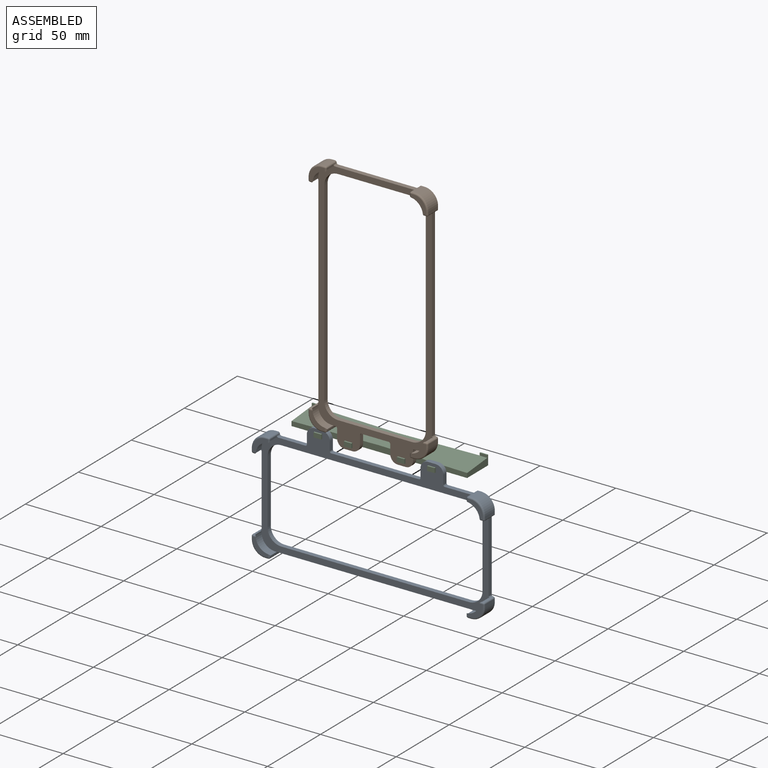
[diagram: assembled view]
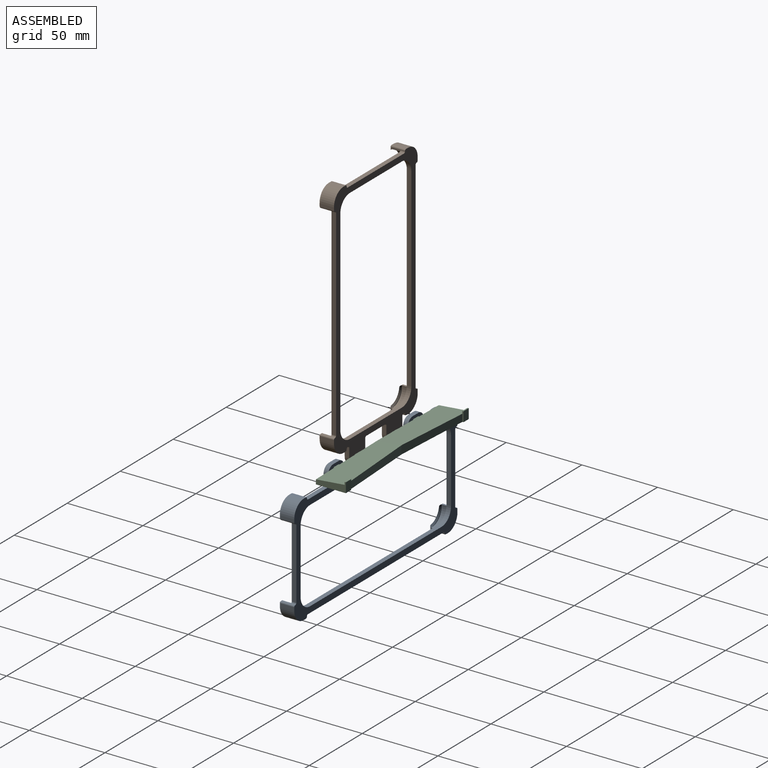
[diagram: assembled view, second angle]
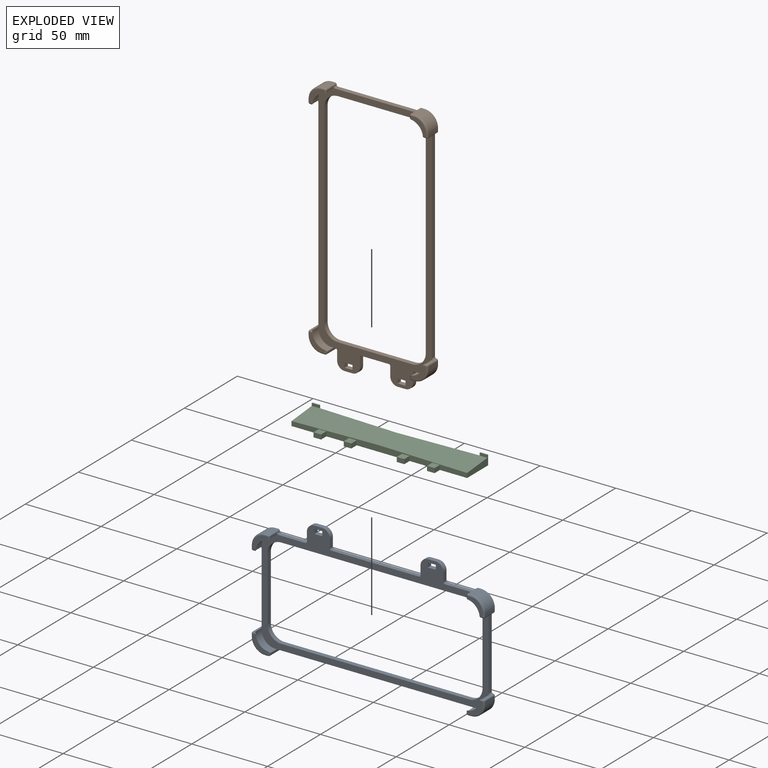
[diagram: exploded view]
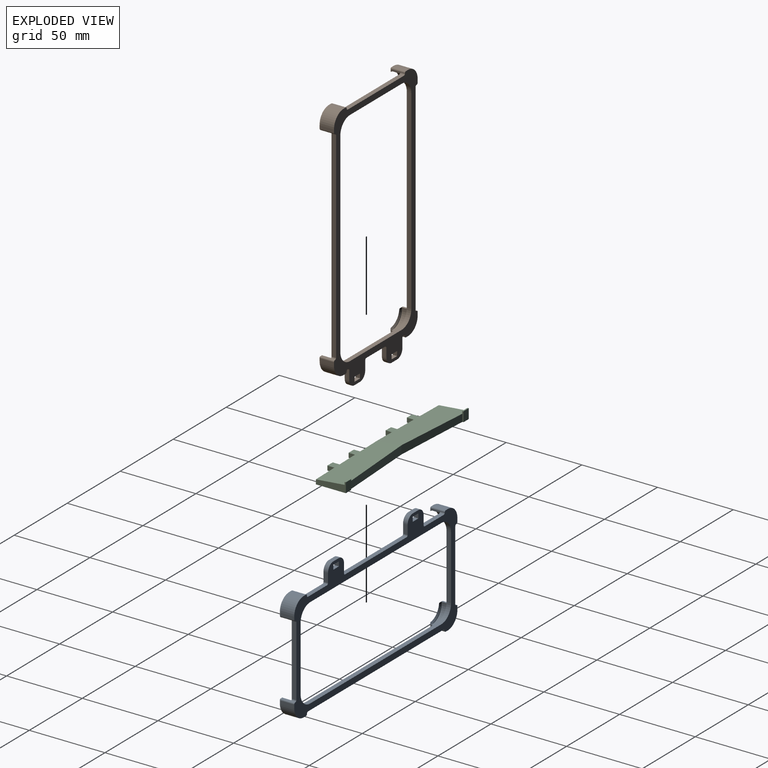
[diagram: exploded view, second angle]
ASSEMBLY  parts=3 mates=2
PART A: 126 faces, bbox 10x155.5x83.2 mm
  f0: plane 152x81.5mm, normal (1,0,0), area 1996.3mm2, adj f1,f2,f3,f4,f5,f6,f7,f8
  f1: plane 3x3mm, normal (0,-1,0), area 9mm2, adj f0,f2,f37,f41
  f2: plane 5.2x3mm, normal (0,0,1), area 15.6mm2, adj f0,f1,f3,f41
  f3: plane 3x3mm, normal (0,1,0), area 9mm2, adj f0,f2,f37,f41
  f4: plane 5.2x3mm, normal (0,0,1), area 15.6mm2, adj f0,f5,f38,f41
  f5: plane 3x3mm, normal (0,1,0), area 9mm2, adj f0,f4,f6,f41
  f6: plane 5.2x3mm, normal (0,0,-1), area 15.6mm2, adj f0,f5,f38,f41
  f7: plane 42.5x3mm, normal (0,1,0), area 127.5mm2, adj f0,f41,f58,f59
  f8: plane 124x3mm, normal (0,0,-1), area 372mm2, adj f0,f41,f59,f60
  f9: plane 42.5x3mm, normal (0,-1,0), area 127.5mm2, adj f0,f41,f60,f61
  f10: plane 9x2mm, normal (0,1,0), area 18mm2, adj f41,f62,f93,f99
  f11: plane 9x2mm, normal (0,0,1), area 18mm2, adj f41,f62,f90,f102
  f12: plane 6x1mm, normal (0,-1,0), area 6mm2, adj f0,f42,f89,f102
  f13: plane 128x3mm, normal (0,0,1), area 384mm2, adj f0,f41,f101,f104
  f14: plane 6x1mm, normal (0,1,0), area 6mm2, adj f0,f50,f86,f105
  f15: plane 9x2mm, normal (0,0,1), area 18mm2, adj f41,f63,f88,f105
  f16: plane 9x2mm, normal (0,-1,0), area 18mm2, adj f41,f63,f85,f108
  f17: plane 6x1mm, normal (0,0,-1), area 6mm2, adj f0,f51,f84,f108
  f18: plane 46.5x3mm, normal (0,-1,0), area 139.5mm2, adj f0,f41,f107,f110
  f19: plane 6x1mm, normal (0,0,1), area 6mm2, adj f0,f46,f82,f111
  f20: plane 9x2mm, normal (0,-1,0), area 18mm2, adj f41,f64,f83,f111
  f21: plane 9x2mm, normal (0,0,-1), area 18mm2, adj f41,f64,f80,f114
  f22: plane 6x1mm, normal (0,1,0), area 6mm2, adj f0,f47,f79,f114
  f23: plane 17.9x3mm, normal (0,0,-1), area 53.7mm2, adj f0,f41,f113,f122
  f24: plane 6x3mm, normal (0,-1,0), area 18mm2, adj f0,f41,f94,f122
  f25: plane 5.1x3mm, normal (0,0,-1), area 15.3mm2, adj f0,f41,f94,f95
  f26: plane 6x3mm, normal (0,1,0), area 18mm2, adj f0,f41,f95,f123
  f27: plane 58x3mm, normal (0,0,-1), area 174mm2, adj f0,f41,f123,f124
  f28: plane 6x3mm, normal (0,-1,0), area 18mm2, adj f0,f41,f96,f124
  f29: plane 5.1x3mm, normal (0,0,-1), area 15.3mm2, adj f0,f41,f96,f97
  f30: plane 6x3mm, normal (0,1,0), area 18mm2, adj f0,f41,f97,f125
  f31: plane 17.9x3mm, normal (0,0,-1), area 53.7mm2, adj f0,f41,f116,f125
  f32: plane 6x1mm, normal (0,-1,0), area 6mm2, adj f0,f54,f76,f117
  f33: plane 9x2mm, normal (0,0,-1), area 18mm2, adj f41,f65,f78,f117
  f34: plane 9x2mm, normal (0,1,0), area 18mm2, adj f41,f65,f75,f120
  f35: plane 6x1mm, normal (0,0,1), area 6mm2, adj f0,f55,f74,f120
  f36: plane 46.5x3mm, normal (0,1,0), area 139.5mm2, adj f0,f41,f98,f119
  f37: plane 5.2x3mm, normal (0,0,-1), area 15.6mm2, adj f0,f1,f3,f41
  f38: plane 3x3mm, normal (0,-1,0), area 9mm2, adj f0,f4,f6,f41
  f39: plane 6x1mm, normal (0,0,-1), area 6mm2, adj f0,f43,f92,f99
  f40: plane 124x3mm, normal (0,0,1), area 372mm2, adj f0,f41,f58,f61
  f41: plane 154x82.5mm, normal (-1,0,0), area 2170.6mm2, adj f1,f2,f3,f4,f5,f6,f7,f8
  f42: plane 6x1mm, normal (0,0,-1), area 6mm2, adj f0,f12,f45,f68
  f43: plane 6x1mm, normal (0,-1,0), area 6mm2, adj f0,f39,f45,f68
  f44: plane 10x10mm, normal (1,0,0), area 39.6mm2, adj f71,f89,f90,f91,f92,f93
  f45: plane 10x10mm, normal (-1,0,0), area 4.1mm2, adj f42,f43,f68,f71
  f46: plane 6x1mm, normal (0,1,0), area 6mm2, adj f0,f19,f49,f66
  f47: plane 6x1mm, normal (0,0,1), area 6mm2, adj f0,f22,f49,f66
  f48: plane 10x10mm, normal (1,0,0), area 39.6mm2, adj f73,f79,f80,f81,f82,f83
  f49: plane 10x10mm, normal (-1,0,0), area 4.1mm2, adj f46,f47,f66,f73
  f50: plane 6x1mm, normal (0,0,-1), area 6mm2, adj f0,f14,f52,f69
  f51: plane 6x1mm, normal (0,1,0), area 6mm2, adj f0,f17,f52,f69
  f52: plane 10x10mm, normal (-1,0,0), area 4.1mm2, adj f50,f51,f69,f72
  f53: plane 10x10mm, normal (1,0,0), area 39.6mm2, adj f72,f84,f85,f86,f87,f88
  f54: plane 6x1mm, normal (0,0,1), area 6mm2, adj f0,f32,f56,f67
  f55: plane 6x1mm, normal (0,-1,0), area 6mm2, adj f0,f35,f56,f67
  f56: plane 10x10mm, normal (-1,0,0), area 4.1mm2, adj f54,f55,f67,f70
  f57: plane 10x10mm, normal (1,0,0), area 39.6mm2, adj f70,f74,f75,f76,f77,f78
  f58: cylinder r=9mm len=9mm, axis (1,0,0), area 42.4mm2, adj f0,f7,f40,f41
  f59: cylinder r=9mm len=9mm, axis (1,0,0), area 42.4mm2, adj f0,f7,f8,f41
  f60: cylinder r=9mm len=9mm, axis (1,0,0), area 42.4mm2, adj f0,f8,f9,f41
  f61: cylinder r=9mm len=9mm, axis (1,0,0), area 42.4mm2, adj f0,f9,f40,f41
  f62: cylinder r=9mm len=9mm, axis (1,0,0), area 127.2mm2, adj f10,f11,f41,f91
  f63: cylinder r=9mm len=9mm, axis (1,0,0), area 127.2mm2, adj f15,f16,f41,f87
  f64: cylinder r=9mm len=9mm, axis (1,0,0), area 127.2mm2, adj f20,f21,f41,f81
  f65: cylinder r=9mm len=9mm, axis (1,0,0), area 127.2mm2, adj f33,f34,f41,f77
  f66: cylinder r=9mm len=9mm, axis (-1,0,0), area 84.8mm2, adj f0,f46,f47,f49
  f67: cylinder r=9mm len=9mm, axis (-1,0,0), area 84.8mm2, adj f0,f54,f55,f56
  f68: cylinder r=9mm len=9mm, axis (-1,0,0), area 84.8mm2, adj f0,f42,f43,f45
  f69: cylinder r=9mm len=9mm, axis (-1,0,0), area 84.8mm2, adj f0,f50,f51,f52
  f70: cone r=10mm half-angle=45deg, axis (-1,0,0), area 20.5mm2, adj f56,f57,f74,f76
  f71: cone r=10mm half-angle=45deg, axis (-1,0,0), area 20.5mm2, adj f44,f45,f89,f92
  f72: cone r=10mm half-angle=45deg, axis (-1,0,0), area 20.5mm2, adj f52,f53,f84,f86
  f73: cone r=10mm half-angle=45deg, axis (-1,0,0), area 20.5mm2, adj f48,f49,f79,f82
  f74: cylinder r=1mm len=2.06mm, axis (0,-1,0), area 2.6mm2, adj f35,f57,f70,f121
  f75: cylinder r=1mm len=2mm, axis (0,0,1), area 3.1mm2, adj f34,f57,f77,f121
  f76: cylinder r=1mm len=2.06mm, axis (0,0,-1), area 2.6mm2, adj f32,f57,f70,f118
  f77: torus R=8mm, axis (1,0,0), area 21.3mm2, adj f57,f65,f75,f78
  f78: cylinder r=1mm len=2mm, axis (0,1,0), area 3.1mm2, adj f33,f57,f77,f118
  f79: cylinder r=1mm len=2.06mm, axis (0,0,1), area 2.6mm2, adj f22,f48,f73,f115
  f80: cylinder r=1mm len=2mm, axis (0,1,0), area 3.1mm2, adj f21,f48,f81,f115
  f81: torus R=8mm, axis (1,0,0), area 21.3mm2, adj f48,f64,f80,f83
  f82: cylinder r=1mm len=2.06mm, axis (0,-1,0), area 2.6mm2, adj f19,f48,f73,f112
  f83: cylinder r=1mm len=2mm, axis (0,0,-1), area 3.1mm2, adj f20,f48,f81,f112
  f84: cylinder r=1mm len=2.06mm, axis (0,1,0), area 2.6mm2, adj f17,f53,f72,f109
  f85: cylinder r=1mm len=2mm, axis (0,0,-1), area 3.1mm2, adj f16,f53,f87,f109
  f86: cylinder r=1mm len=2.06mm, axis (0,0,1), area 2.6mm2, adj f14,f53,f72,f106
  f87: torus R=8mm, axis (1,0,0), area 21.3mm2, adj f53,f63,f85,f88
  f88: cylinder r=1mm len=2mm, axis (0,-1,0), area 3.1mm2, adj f15,f53,f87,f106
  f89: cylinder r=1mm len=2.06mm, axis (0,0,-1), area 2.6mm2, adj f12,f44,f71,f103
  f90: cylinder r=1mm len=2mm, axis (0,-1,0), area 3.1mm2, adj f11,f44,f91,f103
  f91: torus R=8mm, axis (1,0,0), area 21.3mm2, adj f44,f62,f90,f93
  f92: cylinder r=1mm len=2.06mm, axis (0,1,0), area 2.6mm2, adj f39,f44,f71,f100
  f93: cylinder r=1mm len=2mm, axis (0,0,1), area 3.1mm2, adj f10,f44,f91,f100
  f94: cylinder r=5mm len=5mm, axis (1,0,0), area 23.6mm2, adj f0,f24,f25,f41
  f95: cylinder r=5mm len=5mm, axis (1,0,0), area 23.6mm2, adj f0,f25,f26,f41
  f96: cylinder r=5mm len=5mm, axis (1,0,0), area 23.6mm2, adj f0,f28,f29,f41
  f97: cylinder r=5mm len=5mm, axis (1,0,0), area 23.6mm2, adj f0,f29,f30,f41
  f98: cylinder r=1mm len=3mm, axis (-1,0,0), area 4.7mm2, adj f0,f36,f41,f99
  f99: cylinder r=1mm len=9mm, axis (1,0,0), area 14.1mm2, adj f10,f39,f41,f98,f100
  f100: sphere r=1mm, area 1.6mm2, adj f92,f93,f99
  f101: cylinder r=1mm len=3mm, axis (-1,0,0), area 4.7mm2, adj f0,f13,f41,f102
  f102: cylinder r=1mm len=9mm, axis (1,0,0), area 14.1mm2, adj f11,f12,f41,f101,f103
  f103: sphere r=1mm, area 1.6mm2, adj f89,f90,f102
  f104: cylinder r=1mm len=3mm, axis (1,0,0), area 4.7mm2, adj f0,f13,f41,f105
  f105: cylinder r=1mm len=9mm, axis (1,0,0), area 14.1mm2, adj f14,f15,f41,f104,f106
  f106: sphere r=1mm, area 1.6mm2, adj f86,f88,f105
  f107: cylinder r=1mm len=3mm, axis (-1,0,0), area 4.7mm2, adj f0,f18,f41,f108
  f108: cylinder r=1mm len=9mm, axis (1,0,0), area 14.1mm2, adj f16,f17,f41,f107,f109
  f109: sphere r=1mm, area 1.6mm2, adj f84,f85,f108
  f110: cylinder r=1mm len=3mm, axis (1,0,0), area 4.7mm2, adj f0,f18,f41,f111
  f111: cylinder r=1mm len=9mm, axis (1,0,0), area 14.1mm2, adj f19,f20,f41,f110,f112
  f112: sphere r=1mm, area 1.6mm2, adj f82,f83,f111
  f113: cylinder r=1mm len=3mm, axis (1,0,0), area 4.7mm2, adj f0,f23,f41,f114
  f114: cylinder r=1mm len=9mm, axis (1,0,0), area 14.1mm2, adj f21,f22,f41,f113,f115
  f115: sphere r=1mm, area 1.6mm2, adj f79,f80,f114
  f116: cylinder r=1mm len=3mm, axis (-1,0,0), area 4.7mm2, adj f0,f31,f41,f117
  f117: cylinder r=1mm len=9mm, axis (1,0,0), area 14.1mm2, adj f32,f33,f41,f116,f118
  f118: sphere r=1mm, area 1.6mm2, adj f76,f78,f117
  f119: cylinder r=1mm len=3mm, axis (1,0,0), area 4.7mm2, adj f0,f36,f41,f120
  f120: cylinder r=1mm len=9mm, axis (1,0,0), area 14.1mm2, adj f34,f35,f41,f119,f121
  f121: sphere r=1mm, area 1.6mm2, adj f74,f75,f120
  f122: cylinder r=1mm len=3mm, axis (1,0,0), area 4.7mm2, adj f0,f23,f24,f41
  f123: cylinder r=1mm len=3mm, axis (1,0,0), area 4.7mm2, adj f0,f26,f27,f41
  f124: cylinder r=1mm len=3mm, axis (-1,0,0), area 4.7mm2, adj f0,f27,f28,f41
  f125: cylinder r=1mm len=3mm, axis (-1,0,0), area 4.7mm2, adj f0,f30,f31,f41
PART B: 126 faces, bbox 10x80.5x169.7 mm
  f0: plane 168x77mm, normal (1,0,0), area 2088.3mm2, adj f1,f2,f3,f4,f5,f6,f7,f8
  f1: plane 3x3mm, normal (0,-1,0), area 9mm2, adj f0,f2,f37,f41
  f2: plane 5.2x3mm, normal (0,0,1), area 15.6mm2, adj f0,f1,f3,f41
  f3: plane 3x3mm, normal (0,1,0), area 9mm2, adj f0,f2,f37,f41
  f4: plane 5.2x3mm, normal (0,0,1), area 15.6mm2, adj f0,f5,f38,f41
  f5: plane 3x3mm, normal (0,1,0), area 9mm2, adj f0,f4,f6,f41
  f6: plane 5.2x3mm, normal (0,0,-1), area 15.6mm2, adj f0,f5,f38,f41
  f7: plane 129x3mm, normal (0,1,0), area 387mm2, adj f0,f41,f58,f59
  f8: plane 49x3mm, normal (0,0,-1), area 147mm2, adj f0,f41,f59,f60
  f9: plane 129x3mm, normal (0,-1,0), area 387mm2, adj f0,f41,f60,f61
  f10: plane 9x2mm, normal (0,1,0), area 18mm2, adj f41,f62,f93,f99
  f11: plane 9x2mm, normal (0,0,1), area 18mm2, adj f41,f62,f90,f102
  f12: plane 6x1mm, normal (0,-1,0), area 6mm2, adj f0,f42,f89,f102
  f13: plane 53x3mm, normal (0,0,1), area 159mm2, adj f0,f41,f101,f104
  f14: plane 6x1mm, normal (0,1,0), area 6mm2, adj f0,f50,f86,f105
  f15: plane 9x2mm, normal (0,0,1), area 18mm2, adj f41,f63,f88,f105
  f16: plane 9x2mm, normal (0,-1,0), area 18mm2, adj f41,f63,f85,f108
  f17: plane 6x1mm, normal (0,0,-1), area 6mm2, adj f0,f51,f84,f108
  f18: plane 133x3mm, normal (0,-1,0), area 399mm2, adj f0,f41,f107,f110
  f19: plane 6x1mm, normal (0,0,1), area 6mm2, adj f0,f46,f82,f111
  f20: plane 9x2mm, normal (0,-1,0), area 18mm2, adj f41,f64,f83,f111
  f21: plane 9x2mm, normal (0,0,-1), area 18mm2, adj f41,f64,f80,f114
  f22: plane 6x1mm, normal (0,1,0), area 6mm2, adj f0,f47,f79,f114
  f23: plane 3x0.4mm, normal (0,0,-1), area 1.2mm2, adj f0,f41,f113,f122
  f24: plane 6x3mm, normal (0,-1,0), area 18mm2, adj f0,f41,f94,f122
  f25: plane 5.1x3mm, normal (0,0,-1), area 15.3mm2, adj f0,f41,f94,f95
  f26: plane 6x3mm, normal (0,1,0), area 18mm2, adj f0,f41,f95,f123
  f27: plane 18x3mm, normal (0,0,-1), area 54mm2, adj f0,f41,f123,f124
  f28: plane 6x3mm, normal (0,-1,0), area 18mm2, adj f0,f41,f96,f124
  f29: plane 5.1x3mm, normal (0,0,-1), area 15.3mm2, adj f0,f41,f96,f97
  f30: plane 6x3mm, normal (0,1,0), area 18mm2, adj f0,f41,f97,f125
  f31: plane 3x0.4mm, normal (0,0,-1), area 1.2mm2, adj f0,f41,f116,f125
  f32: plane 6x1mm, normal (0,-1,0), area 6mm2, adj f0,f54,f76,f117
  f33: plane 9x2mm, normal (0,0,-1), area 18mm2, adj f41,f65,f78,f117
  f34: plane 9x2mm, normal (0,1,0), area 18mm2, adj f41,f65,f75,f120
  f35: plane 6x1mm, normal (0,0,1), area 6mm2, adj f0,f55,f74,f120
  f36: plane 133x3mm, normal (0,1,0), area 399mm2, adj f0,f41,f98,f119
  f37: plane 5.2x3mm, normal (0,0,-1), area 15.6mm2, adj f0,f1,f3,f41
  f38: plane 3x3mm, normal (0,-1,0), area 9mm2, adj f0,f4,f6,f41
  f39: plane 6x1mm, normal (0,0,-1), area 6mm2, adj f0,f43,f92,f99
  f40: plane 49x3mm, normal (0,0,1), area 147mm2, adj f0,f41,f58,f61
  f41: plane 169x79mm, normal (-1,0,0), area 2262.6mm2, adj f1,f2,f3,f4,f5,f6,f7,f8
  f42: plane 6x1mm, normal (0,0,-1), area 6mm2, adj f0,f12,f45,f68
  f43: plane 6x1mm, normal (0,-1,0), area 6mm2, adj f0,f39,f45,f68
  f44: plane 10x10mm, normal (1,0,0), area 39.6mm2, adj f71,f89,f90,f91,f92,f93
  f45: plane 10x10mm, normal (-1,0,0), area 4.1mm2, adj f42,f43,f68,f71
  f46: plane 6x1mm, normal (0,1,0), area 6mm2, adj f0,f19,f49,f66
  f47: plane 6x1mm, normal (0,0,1), area 6mm2, adj f0,f22,f49,f66
  f48: plane 10x10mm, normal (1,0,0), area 39.6mm2, adj f73,f79,f80,f81,f82,f83
  f49: plane 10x10mm, normal (-1,0,0), area 4.1mm2, adj f46,f47,f66,f73
  f50: plane 6x1mm, normal (0,0,-1), area 6mm2, adj f0,f14,f52,f69
  f51: plane 6x1mm, normal (0,1,0), area 6mm2, adj f0,f17,f52,f69
  f52: plane 10x10mm, normal (-1,0,0), area 4.1mm2, adj f50,f51,f69,f72
  f53: plane 10x10mm, normal (1,0,0), area 39.6mm2, adj f72,f84,f85,f86,f87,f88
  f54: plane 6x1mm, normal (0,0,1), area 6mm2, adj f0,f32,f56,f67
  f55: plane 6x1mm, normal (0,-1,0), area 6mm2, adj f0,f35,f56,f67
  f56: plane 10x10mm, normal (-1,0,0), area 4.1mm2, adj f54,f55,f67,f70
  f57: plane 10x10mm, normal (1,0,0), area 39.6mm2, adj f70,f74,f75,f76,f77,f78
  f58: cylinder r=9mm len=9mm, axis (1,0,0), area 42.4mm2, adj f0,f7,f40,f41
  f59: cylinder r=9mm len=9mm, axis (1,0,0), area 42.4mm2, adj f0,f7,f8,f41
  f60: cylinder r=9mm len=9mm, axis (1,0,0), area 42.4mm2, adj f0,f8,f9,f41
  f61: cylinder r=9mm len=9mm, axis (1,0,0), area 42.4mm2, adj f0,f9,f40,f41
  f62: cylinder r=9mm len=9mm, axis (1,0,0), area 127.2mm2, adj f10,f11,f41,f91
  f63: cylinder r=9mm len=9mm, axis (1,0,0), area 127.2mm2, adj f15,f16,f41,f87
  f64: cylinder r=9mm len=9mm, axis (1,0,0), area 127.2mm2, adj f20,f21,f41,f81
  f65: cylinder r=9mm len=9mm, axis (1,0,0), area 127.2mm2, adj f33,f34,f41,f77
  f66: cylinder r=9mm len=9mm, axis (-1,0,0), area 84.8mm2, adj f0,f46,f47,f49
  f67: cylinder r=9mm len=9mm, axis (-1,0,0), area 84.8mm2, adj f0,f54,f55,f56
  f68: cylinder r=9mm len=9mm, axis (-1,0,0), area 84.8mm2, adj f0,f42,f43,f45
  f69: cylinder r=9mm len=9mm, axis (-1,0,0), area 84.8mm2, adj f0,f50,f51,f52
  f70: cone r=10mm half-angle=45deg, axis (-1,0,0), area 20.5mm2, adj f56,f57,f74,f76
  f71: cone r=10mm half-angle=45deg, axis (-1,0,0), area 20.5mm2, adj f44,f45,f89,f92
  f72: cone r=10mm half-angle=45deg, axis (-1,0,0), area 20.5mm2, adj f52,f53,f84,f86
  f73: cone r=10mm half-angle=45deg, axis (-1,0,0), area 20.5mm2, adj f48,f49,f79,f82
  f74: cylinder r=1mm len=2.06mm, axis (0,-1,0), area 2.6mm2, adj f35,f57,f70,f121
  f75: cylinder r=1mm len=2mm, axis (0,0,1), area 3.1mm2, adj f34,f57,f77,f121
  f76: cylinder r=1mm len=2.06mm, axis (0,0,-1), area 2.6mm2, adj f32,f57,f70,f118
  f77: torus R=8mm, axis (1,0,0), area 21.3mm2, adj f57,f65,f75,f78
  f78: cylinder r=1mm len=2mm, axis (0,1,0), area 3.1mm2, adj f33,f57,f77,f118
  f79: cylinder r=1mm len=2.06mm, axis (0,0,1), area 2.6mm2, adj f22,f48,f73,f115
  f80: cylinder r=1mm len=2mm, axis (0,1,0), area 3.1mm2, adj f21,f48,f81,f115
  f81: torus R=8mm, axis (1,0,0), area 21.3mm2, adj f48,f64,f80,f83
  f82: cylinder r=1mm len=2.06mm, axis (0,-1,0), area 2.6mm2, adj f19,f48,f73,f112
  f83: cylinder r=1mm len=2mm, axis (0,0,-1), area 3.1mm2, adj f20,f48,f81,f112
  f84: cylinder r=1mm len=2.06mm, axis (0,1,0), area 2.6mm2, adj f17,f53,f72,f109
  f85: cylinder r=1mm len=2mm, axis (0,0,-1), area 3.1mm2, adj f16,f53,f87,f109
  f86: cylinder r=1mm len=2.06mm, axis (0,0,1), area 2.6mm2, adj f14,f53,f72,f106
  f87: torus R=8mm, axis (1,0,0), area 21.3mm2, adj f53,f63,f85,f88
  f88: cylinder r=1mm len=2mm, axis (0,-1,0), area 3.1mm2, adj f15,f53,f87,f106
  f89: cylinder r=1mm len=2.06mm, axis (0,0,-1), area 2.6mm2, adj f12,f44,f71,f103
  f90: cylinder r=1mm len=2mm, axis (0,-1,0), area 3.1mm2, adj f11,f44,f91,f103
  f91: torus R=8mm, axis (1,0,0), area 21.3mm2, adj f44,f62,f90,f93
  f92: cylinder r=1mm len=2.06mm, axis (0,1,0), area 2.6mm2, adj f39,f44,f71,f100
  f93: cylinder r=1mm len=2mm, axis (0,0,1), area 3.1mm2, adj f10,f44,f91,f100
  f94: cylinder r=5mm len=5mm, axis (1,0,0), area 23.6mm2, adj f0,f24,f25,f41
  f95: cylinder r=5mm len=5mm, axis (1,0,0), area 23.6mm2, adj f0,f25,f26,f41
  f96: cylinder r=5mm len=5mm, axis (1,0,0), area 23.6mm2, adj f0,f28,f29,f41
  f97: cylinder r=5mm len=5mm, axis (1,0,0), area 23.6mm2, adj f0,f29,f30,f41
  f98: cylinder r=1mm len=3mm, axis (-1,0,0), area 4.7mm2, adj f0,f36,f41,f99
  f99: cylinder r=1mm len=9mm, axis (1,0,0), area 14.1mm2, adj f10,f39,f41,f98,f100
  f100: sphere r=1mm, area 1.6mm2, adj f92,f93,f99
  f101: cylinder r=1mm len=3mm, axis (-1,0,0), area 4.7mm2, adj f0,f13,f41,f102
  f102: cylinder r=1mm len=9mm, axis (1,0,0), area 14.1mm2, adj f11,f12,f41,f101,f103
  f103: sphere r=1mm, area 1.6mm2, adj f89,f90,f102
  f104: cylinder r=1mm len=3mm, axis (1,0,0), area 4.7mm2, adj f0,f13,f41,f105
  f105: cylinder r=1mm len=9mm, axis (1,0,0), area 14.1mm2, adj f14,f15,f41,f104,f106
  f106: sphere r=1mm, area 1.6mm2, adj f86,f88,f105
  f107: cylinder r=1mm len=3mm, axis (-1,0,0), area 4.7mm2, adj f0,f18,f41,f108
  f108: cylinder r=1mm len=9mm, axis (1,0,0), area 14.1mm2, adj f16,f17,f41,f107,f109
  f109: sphere r=1mm, area 1.6mm2, adj f84,f85,f108
  f110: cylinder r=1mm len=3mm, axis (1,0,0), area 4.7mm2, adj f0,f18,f41,f111
  f111: cylinder r=1mm len=9mm, axis (1,0,0), area 14.1mm2, adj f19,f20,f41,f110,f112
  f112: sphere r=1mm, area 1.6mm2, adj f82,f83,f111
  f113: cylinder r=1mm len=3mm, axis (1,0,0), area 4.7mm2, adj f0,f23,f41,f114
  f114: cylinder r=1mm len=9mm, axis (1,0,0), area 14.1mm2, adj f21,f22,f41,f113,f115
  f115: sphere r=1mm, area 1.6mm2, adj f79,f80,f114
  f116: cylinder r=1mm len=3mm, axis (-1,0,0), area 4.7mm2, adj f0,f31,f41,f117
  f117: cylinder r=1mm len=9mm, axis (1,0,0), area 14.1mm2, adj f32,f33,f41,f116,f118
  f118: sphere r=1mm, area 1.6mm2, adj f76,f78,f117
  f119: cylinder r=1mm len=3mm, axis (1,0,0), area 4.7mm2, adj f0,f36,f41,f120
  f120: cylinder r=1mm len=9mm, axis (1,0,0), area 14.1mm2, adj f34,f35,f41,f119,f121
  f121: sphere r=1mm, area 1.6mm2, adj f74,f75,f120
  f122: cylinder r=1mm len=3mm, axis (1,0,0), area 4.7mm2, adj f0,f23,f24,f41
  f123: cylinder r=1mm len=3mm, axis (1,0,0), area 4.7mm2, adj f0,f26,f27,f41
  f124: cylinder r=1mm len=3mm, axis (-1,0,0), area 4.7mm2, adj f0,f27,f28,f41
  f125: cylinder r=1mm len=3mm, axis (-1,0,0), area 4.7mm2, adj f0,f30,f31,f41
PART C: 32 faces, bbox 116x24.8x6.5 mm
  f0: plane 19.8x6.5mm, normal (1,0,0), area 78.8mm2, adj f1,f2,f3,f4,f18,f27
  f1: plane 116x24.8mm, normal (0,0,-1), area 2156mm2, adj f0,f4,f5,f6,f7,f8,f9,f11
  f2: plane 5x1.74mm, normal (0,-1,0), area 8.5mm2, adj f0,f3,f5,f27
  f3: plane 5x0.8mm, normal (0,0,1), area 4mm2, adj f0,f2,f4,f5
  f4: plane 6.5x5mm, normal (0,1,0), area 32.5mm2, adj f0,f1,f3,f5
  f5: plane 6.5x0.8mm, normal (-1,0,0), area 4.9mm2, adj f1,f2,f3,f4,f6,f27
  f6: plane 53x5.5mm, normal (-0.06,1,0), area 274.9mm2, adj f1,f5,f17,f27
  f7: plane 5x3mm, normal (0,-1,0), area 15mm2, adj f1,f12,f13,f14
  f8: plane 5x3mm, normal (0,-1,0), area 15mm2, adj f1,f9,f10,f11
  f9: plane 5x3mm, normal (1,0,0), area 15mm2, adj f1,f8,f10,f18
  f10: plane 5x5mm, normal (0,0,1), area 25mm2, adj f8,f9,f11,f18
  f11: plane 5x3mm, normal (-1,0,0), area 15mm2, adj f1,f8,f10,f18
  f12: plane 5x3mm, normal (1,0,0), area 15mm2, adj f1,f7,f13,f18
  f13: plane 5x5mm, normal (0,0,1), area 25mm2, adj f7,f12,f14,f18
  f14: plane 5x3mm, normal (-1,0,0), area 15mm2, adj f1,f7,f13,f18
  f15: plane 19.8x6.5mm, normal (-1,0,0), area 78.8mm2, adj f1,f16,f18,f19,f20,f21
  f16: plane 58x19.06mm, normal (-0.02,-0.09,1), area 1028.6mm2, adj f15,f17,f18,f21,f22,f27
  f17: plane 53x5.5mm, normal (0.06,1,0), area 274.9mm2, adj f1,f6,f16,f22
  f18: plane 116x4mm, normal (0,-1,0), area 345mm2, adj f0,f1,f9,f10,f11,f12,f13,f14
  f19: plane 6.5x5mm, normal (0,1,0), area 32.5mm2, adj f1,f15,f20,f22
  f20: plane 5x0.8mm, normal (0,0,1), area 4mm2, adj f15,f19,f21,f22
  f21: plane 5x1.74mm, normal (0,-1,0), area 8.5mm2, adj f15,f16,f20,f22
  f22: plane 6.5x0.8mm, normal (1,0,0), area 4.9mm2, adj f1,f16,f17,f19,f20,f21
  f23: plane 5x3mm, normal (1,0,0), area 15mm2, adj f1,f18,f24,f25
  f24: plane 5x3mm, normal (0,-1,0), area 15mm2, adj f1,f23,f25,f26
  f25: plane 5x5mm, normal (0,0,1), area 25mm2, adj f18,f23,f24,f26
  f26: plane 5x3mm, normal (-1,0,0), area 15mm2, adj f1,f18,f24,f25
  f27: plane 58x19.06mm, normal (0.02,-0.09,1), area 1028.6mm2, adj f0,f2,f5,f6,f16,f18
  f28: plane 5x3mm, normal (1,0,0), area 15mm2, adj f1,f18,f29,f30
  f29: plane 5x3mm, normal (0,-1,0), area 15mm2, adj f1,f28,f30,f31
  f30: plane 5x5mm, normal (0,0,1), area 25mm2, adj f18,f28,f29,f31
  f31: plane 5x3mm, normal (-1,0,0), area 15mm2, adj f1,f18,f29,f30
PLACE A rot(axis=(-0.71,0.71,0),180deg) t=(40.89,14.59,-49.51)mm
PLACE B rot(axis=(0,0,-1),90deg) t=(40.89,14.59,79.24)mm
PLACE C t=(40.89,18.59,-8.26)mm
MATE fastened B.f6 <-> C.f30  axis (0,0,-1) through (58.39,16.09,-5.26)mm
MATE fastened A.f2 <-> C.f25  axis (0,0,-1) through (78.39,16.09,-5.26)mm
